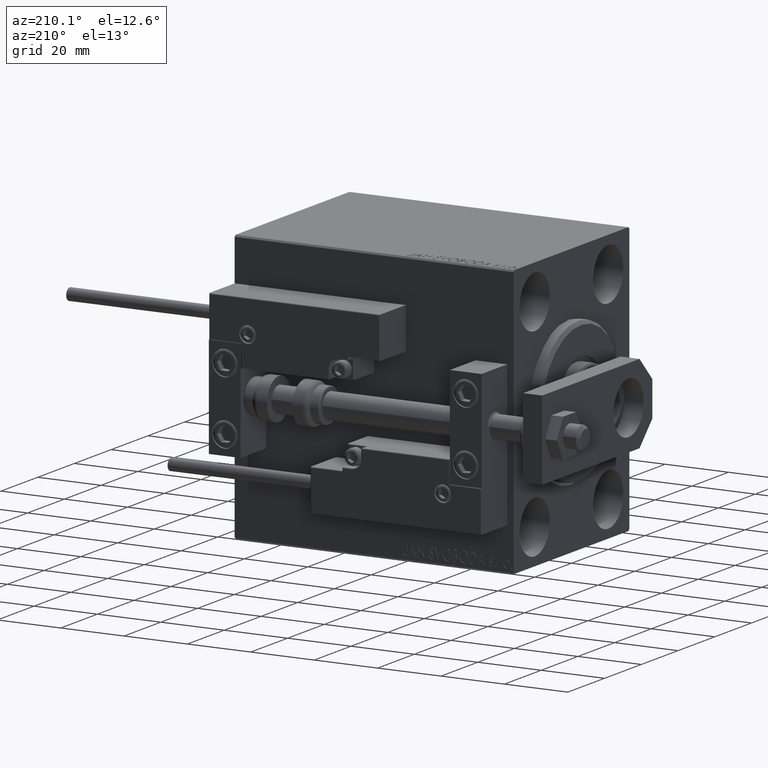
[diagram: clean part render]
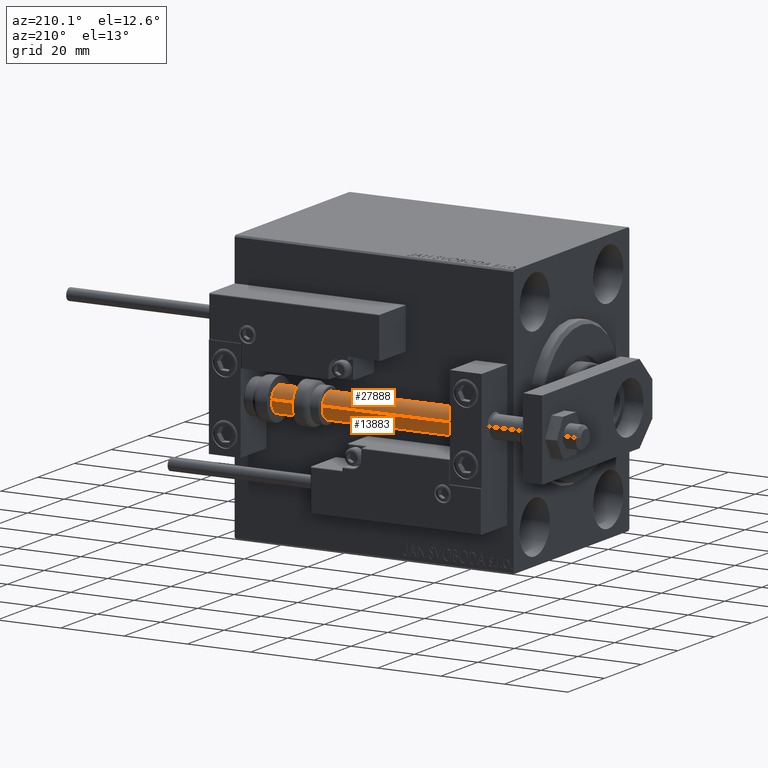
[diagram: same view with one multi-face feature highlighted, each face labeled with its STEP entity id]
A machine part, auxiliary view. The highlighted faces form ONE feature: a constant-radius fillet chain: 2 tangent blend faces with common blend radius 4 mm. The faces share edges in the B-rep.
Their STEP definitions:
[1] entity #13883 (Cylinder):
#974 = VERTEX_POINT ( 'NONE', #13792 ) ;
#2000 = VECTOR ( 'NONE', #26426, 1000.000000000000000 ) ;
#2453 = CARTESIAN_POINT ( 'NONE',  ( 0.000000000000000000, 0.000000000000000000, 88.00000000000000000 ) ) ;
#4243 = AXIS2_PLACEMENT_3D ( 'NONE', #29385, #33693, #48627 ) ;
#6203 = ORIENTED_EDGE ( 'NONE', *, *, #28178, .F. ) ;
#7432 = CARTESIAN_POINT ( 'NONE',  ( 0.000000000000000000, 0.000000000000000000, 88.00000000000000000 ) ) ;
#9417 = CIRCLE ( 'NONE', #21561, 4.000000000000000000 ) ;
#12982 = VERTEX_POINT ( 'NONE', #23790 ) ;
#13792 = CARTESIAN_POINT ( 'NONE',  ( -4.000000000000000000, 0.000000000000000000, 2.000000000000029310 ) ) ;
#13883 = ADVANCED_FACE ( 'NONE', ( #41870 ), #33774, .T. ) ;
#16366 = CIRCLE ( 'NONE', #4243, 4.000000000000000000 ) ;
#19475 = EDGE_CURVE ( 'NONE', #974, #45910, #16366, .T. ) ;
#21561 = AXIS2_PLACEMENT_3D ( 'NONE', #2453, #49541, #48540 ) ;
#22873 = DIRECTION ( 'NONE',  ( -0.000000000000000000, -0.000000000000000000, -1.000000000000000000 ) ) ;
#23114 = CARTESIAN_POINT ( 'NONE',  ( 4.000000000000000000, 4.898587196589412829E-16, 88.00000000000000000 ) ) ;
#23790 = CARTESIAN_POINT ( 'NONE',  ( -4.000000000000000000, 0.000000000000000000, 88.00000000000000000 ) ) ;
#26426 = DIRECTION ( 'NONE',  ( -0.000000000000000000, -0.000000000000000000, -1.000000000000000000 ) ) ;
#28178 = EDGE_CURVE ( 'NONE', #35465, #45910, #45394, .T. ) ;
#28329 = CARTESIAN_POINT ( 'NONE',  ( 4.000000000000000000, 4.898587196589412829E-16, 2.000000000000029310 ) ) ;
#28457 = EDGE_LOOP ( 'NONE', ( #6203, #30932, #40173, #48845 ) ) ;
#28933 = DIRECTION ( 'NONE',  ( -0.000000000000000000, -0.000000000000000000, -1.000000000000000000 ) ) ;
#29385 = CARTESIAN_POINT ( 'NONE',  ( 0.000000000000000000, 0.000000000000000000, 2.000000000000029310 ) ) ;
#30932 = ORIENTED_EDGE ( 'NONE', *, *, #32671, .F. ) ;
#32671 = EDGE_CURVE ( 'NONE', #12982, #35465, #9417, .T. ) ;
#33693 = DIRECTION ( 'NONE',  ( -0.000000000000000000, -0.000000000000000000, 1.000000000000000000 ) ) ;
#33774 = CYLINDRICAL_SURFACE ( 'NONE', #41187, 4.000000000000000000 ) ;
#35465 = VERTEX_POINT ( 'NONE', #49609 ) ;
#40173 = ORIENTED_EDGE ( 'NONE', *, *, #43405, .T. ) ;
#40211 = VECTOR ( 'NONE', #28933, 1000.000000000000000 ) ;
#41072 = LINE ( 'NONE', #49176, #40211 ) ;
#41187 = AXIS2_PLACEMENT_3D ( 'NONE', #7432, #22873, #49218 ) ;
#41870 = FACE_OUTER_BOUND ( 'NONE', #28457, .T. ) ;
#43405 = EDGE_CURVE ( 'NONE', #12982, #974, #41072, .T. ) ;
#45394 = LINE ( 'NONE', #23114, #2000 ) ;
#45910 = VERTEX_POINT ( 'NONE', #28329 ) ;
#48540 = DIRECTION ( 'NONE',  ( 1.000000000000000000, 0.000000000000000000, 0.000000000000000000 ) ) ;
#48627 = DIRECTION ( 'NONE',  ( 1.000000000000000000, 0.000000000000000000, 0.000000000000000000 ) ) ;
#48845 = ORIENTED_EDGE ( 'NONE', *, *, #19475, .T. ) ;
#49176 = CARTESIAN_POINT ( 'NONE',  ( -4.000000000000000000, 0.000000000000000000, 88.00000000000000000 ) ) ;
#49218 = DIRECTION ( 'NONE',  ( -1.000000000000000000, 0.000000000000000000, 0.000000000000000000 ) ) ;
#49541 = DIRECTION ( 'NONE',  ( 0.000000000000000000, 0.000000000000000000, 1.000000000000000000 ) ) ;
#49609 = CARTESIAN_POINT ( 'NONE',  ( 4.000000000000000000, 4.898587196589412829E-16, 88.00000000000000000 ) ) ;
[2] entity #27888 (Cylinder):
#974 = VERTEX_POINT ( 'NONE', #13792 ) ;
#2000 = VECTOR ( 'NONE', #26426, 1000.000000000000000 ) ;
#2996 = CARTESIAN_POINT ( 'NONE',  ( 0.000000000000000000, 0.000000000000000000, 88.00000000000000000 ) ) ;
#3494 = FACE_OUTER_BOUND ( 'NONE', #6077, .T. ) ;
#4749 = CIRCLE ( 'NONE', #46780, 4.000000000000000000 ) ;
#6077 = EDGE_LOOP ( 'NONE', ( #24581, #49179, #30429, #14986 ) ) ;
#8223 = CARTESIAN_POINT ( 'NONE',  ( 0.000000000000000000, 0.000000000000000000, 2.000000000000029310 ) ) ;
#9689 = CARTESIAN_POINT ( 'NONE',  ( 0.000000000000000000, 0.000000000000000000, 88.00000000000000000 ) ) ;
#10593 = CYLINDRICAL_SURFACE ( 'NONE', #28648, 4.000000000000000000 ) ;
#10689 = DIRECTION ( 'NONE',  ( 0.000000000000000000, 0.000000000000000000, 1.000000000000000000 ) ) ;
#11522 = DIRECTION ( 'NONE',  ( 1.000000000000000000, 0.000000000000000000, 0.000000000000000000 ) ) ;
#11904 = AXIS2_PLACEMENT_3D ( 'NONE', #9689, #10689, #21329 ) ;
#12982 = VERTEX_POINT ( 'NONE', #23790 ) ;
#13792 = CARTESIAN_POINT ( 'NONE',  ( -4.000000000000000000, 0.000000000000000000, 2.000000000000029310 ) ) ;
#14646 = DIRECTION ( 'NONE',  ( -1.000000000000000000, 0.000000000000000000, 0.000000000000000000 ) ) ;
#14986 = ORIENTED_EDGE ( 'NONE', *, *, #43405, .F. ) ;
#21329 = DIRECTION ( 'NONE',  ( 1.000000000000000000, 0.000000000000000000, 0.000000000000000000 ) ) ;
#23114 = CARTESIAN_POINT ( 'NONE',  ( 4.000000000000000000, 4.898587196589412829E-16, 88.00000000000000000 ) ) ;
#23790 = CARTESIAN_POINT ( 'NONE',  ( -4.000000000000000000, 0.000000000000000000, 88.00000000000000000 ) ) ;
#24581 = ORIENTED_EDGE ( 'NONE', *, *, #43359, .F. ) ;
#26426 = DIRECTION ( 'NONE',  ( -0.000000000000000000, -0.000000000000000000, -1.000000000000000000 ) ) ;
#27888 = ADVANCED_FACE ( 'NONE', ( #3494 ), #10593, .T. ) ;
#28178 = EDGE_CURVE ( 'NONE', #35465, #45910, #45394, .T. ) ;
#28329 = CARTESIAN_POINT ( 'NONE',  ( 4.000000000000000000, 4.898587196589412829E-16, 2.000000000000029310 ) ) ;
#28648 = AXIS2_PLACEMENT_3D ( 'NONE', #2996, #45020, #14646 ) ;
#28933 = DIRECTION ( 'NONE',  ( -0.000000000000000000, -0.000000000000000000, -1.000000000000000000 ) ) ;
#30429 = ORIENTED_EDGE ( 'NONE', *, *, #49440, .T. ) ;
#30528 = DIRECTION ( 'NONE',  ( -0.000000000000000000, -0.000000000000000000, 1.000000000000000000 ) ) ;
#35465 = VERTEX_POINT ( 'NONE', #49609 ) ;
#40211 = VECTOR ( 'NONE', #28933, 1000.000000000000000 ) ;
#41015 = CIRCLE ( 'NONE', #11904, 4.000000000000000000 ) ;
#41072 = LINE ( 'NONE', #49176, #40211 ) ;
#43359 = EDGE_CURVE ( 'NONE', #35465, #12982, #41015, .T. ) ;
#43405 = EDGE_CURVE ( 'NONE', #12982, #974, #41072, .T. ) ;
#45020 = DIRECTION ( 'NONE',  ( -0.000000000000000000, -0.000000000000000000, -1.000000000000000000 ) ) ;
#45394 = LINE ( 'NONE', #23114, #2000 ) ;
#45910 = VERTEX_POINT ( 'NONE', #28329 ) ;
#46780 = AXIS2_PLACEMENT_3D ( 'NONE', #8223, #30528, #11522 ) ;
#49176 = CARTESIAN_POINT ( 'NONE',  ( -4.000000000000000000, 0.000000000000000000, 88.00000000000000000 ) ) ;
#49179 = ORIENTED_EDGE ( 'NONE', *, *, #28178, .T. ) ;
#49440 = EDGE_CURVE ( 'NONE', #45910, #974, #4749, .T. ) ;
#49609 = CARTESIAN_POINT ( 'NONE',  ( 4.000000000000000000, 4.898587196589412829E-16, 88.00000000000000000 ) ) ;